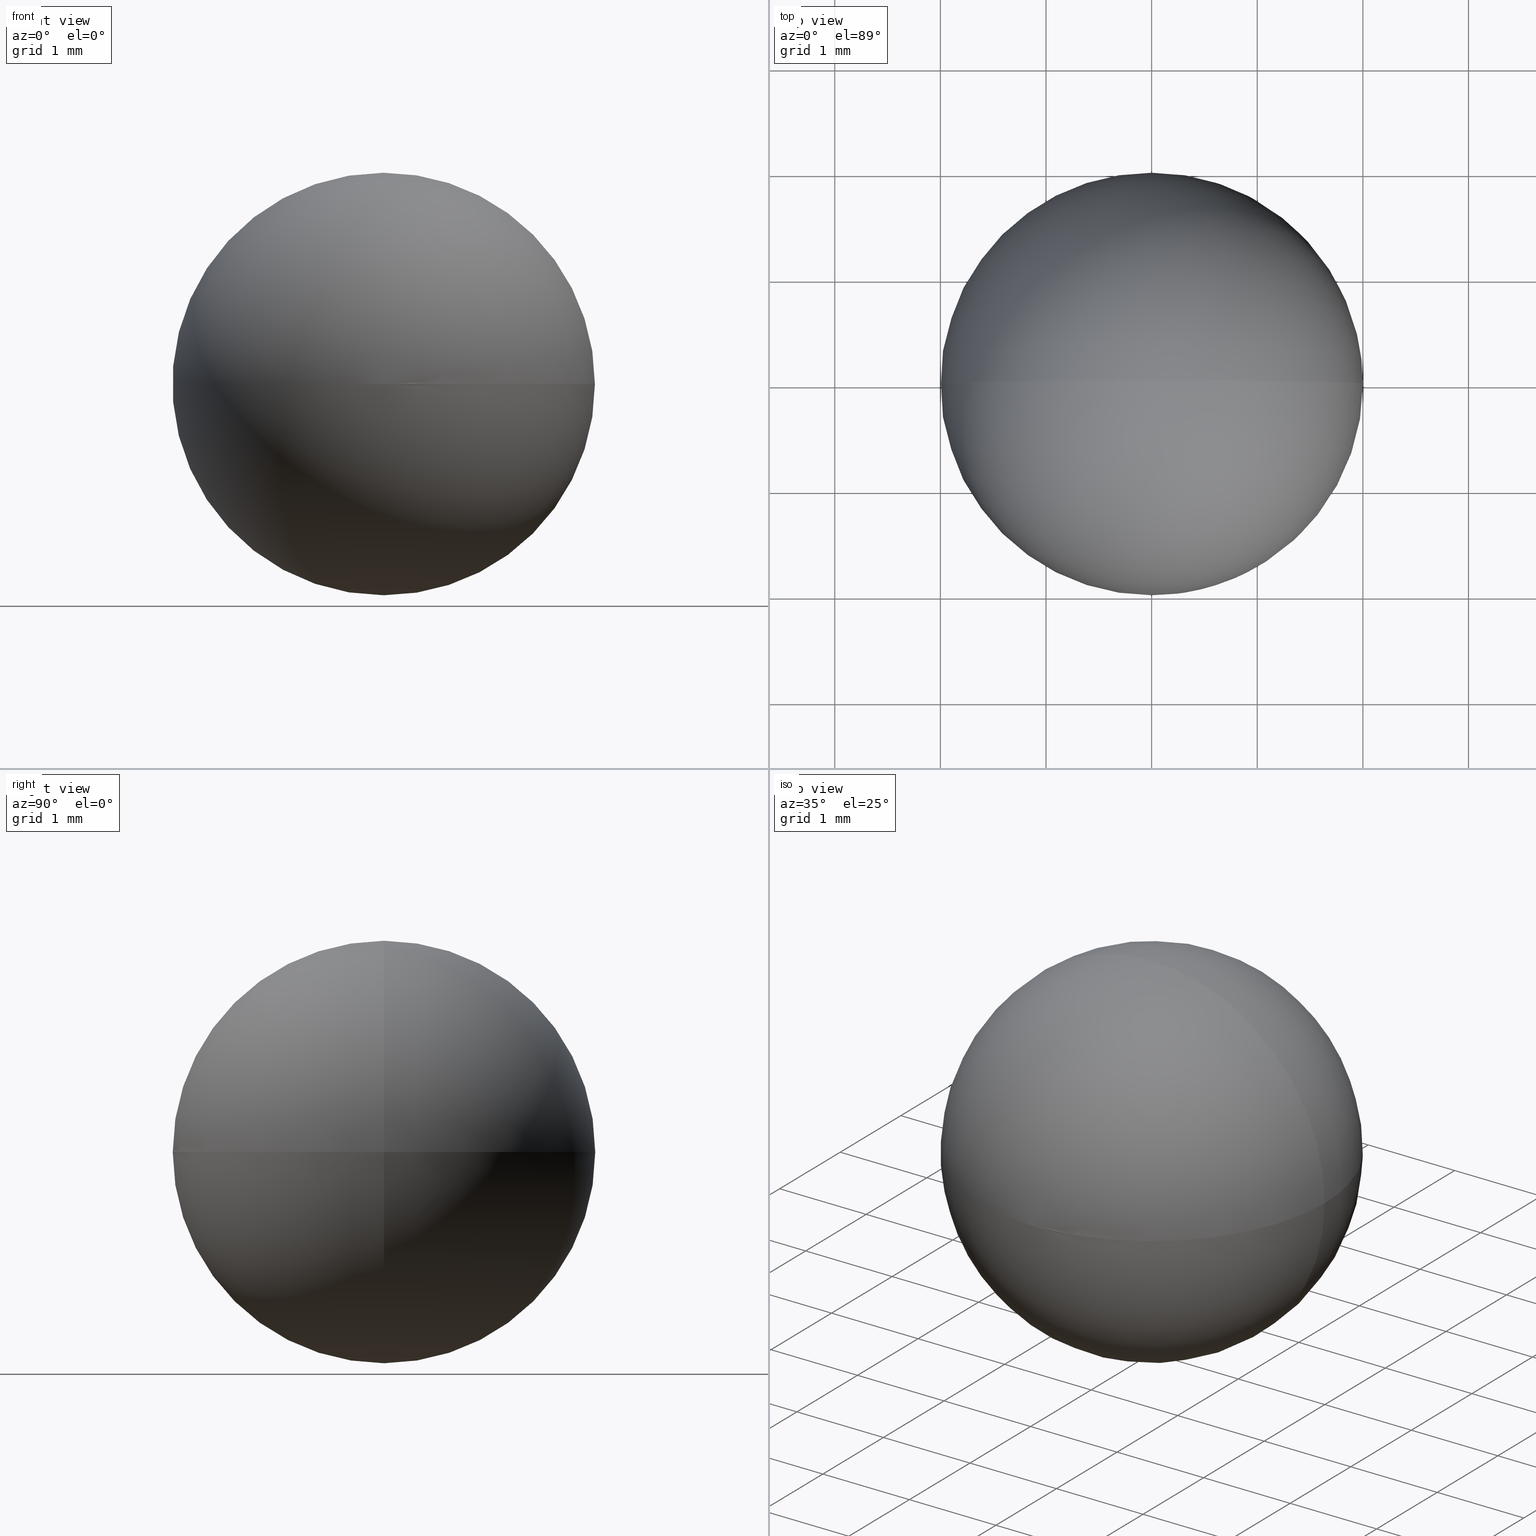
[diagram: canonical four-view strip — front | top / right | iso, engineering-drawing reading convention]
A machine part, canonical four-view strip (front | top / right | iso — engineering-drawing reading convention). The complete STEP part file that produces these views, byte-faithful:
ISO-10303-21;
HEADER;
FILE_DESCRIPTION (( 'STEP AP203' ),
    '1' );
FILE_NAME ('160003.STEP',
    '2019-06-05T05:41:23',
    ( '' ),
    ( '' ),
    'SwSTEP 2.0',
    'SolidWorks 2016',
    '' );
FILE_SCHEMA (( 'CONFIG_CONTROL_DESIGN' ));
ENDSEC;

DATA;
#1 = PRODUCT_DEFINITION_FORMATION_WITH_SPECIFIED_SOURCE ( '�κ�', '', #78, .NOT_KNOWN. ) ;
#2 = COORDINATED_UNIVERSAL_TIME_OFFSET ( 8, 0, .AHEAD. ) ;
#3 = APPROVAL ( #197, 'δָ��' ) ;
#4 = PERSON_AND_ORGANIZATION ( #203, #124 ) ;
#5 = EDGE_CURVE ( 'NONE', #186, #62, #94, .T. ) ;
#6 = PERSON_AND_ORGANIZATION_ROLE ( 'creator' ) ;
#7 = PERSON_AND_ORGANIZATION ( #203, #124 ) ;
#8 = CALENDAR_DATE ( 2019, 5, 6 ) ;
#9 = DIRECTION ( 'NONE',  ( 0.0000000000000000000, 0.0000000000000000000, 1.000000000000000000 ) ) ;
#10 = SECURITY_CLASSIFICATION_LEVEL ( 'unclassified' ) ;
#11 = DESIGN_CONTEXT ( 'detailed design', #105, 'design' ) ;
#12 = SECURITY_CLASSIFICATION ( '', '', #10 ) ;
#13 = CARTESIAN_POINT ( 'NONE',  ( 0.0000000000000000000, 0.0000000000000000000, 0.0000000000000000000 ) ) ;
#14 = CALENDAR_DATE ( 2019, 5, 6 ) ;
#15 = APPROVAL_DATE_TIME ( #108, #3 ) ;
#16 = CC_DESIGN_PERSON_AND_ORGANIZATION_ASSIGNMENT ( #98, #144, ( #201 ) ) ;
#17 = DATE_AND_TIME ( #80, #103 ) ;
#18 = PERSON_AND_ORGANIZATION ( #203, #124 ) ;
#19 = CC_DESIGN_PERSON_AND_ORGANIZATION_ASSIGNMENT ( #18, #141, ( #12 ) ) ;
#20 = LOCAL_TIME ( 13, 41, 23.00000000000000000, #65 ) ;
#21 = DATE_AND_TIME ( #46, #88 ) ;
#22 = ADVANCED_FACE ( 'NONE', ( #26 ), #67, .T. ) ;
#23 = CARTESIAN_POINT ( 'NONE',  ( 0.0000000000000000000, 0.0000000000000000000, 0.0000000000000000000 ) ) ;
#24 = DIRECTION ( 'NONE',  ( 1.000000000000000000, 0.0000000000000000000, 0.0000000000000000000 ) ) ;
#25 = CC_DESIGN_APPROVAL ( #58, ( #50 ) ) ;
#26 = FACE_OUTER_BOUND ( 'NONE', #130, .T. ) ;
#27 = DATE_AND_TIME ( #8, #119 ) ;
#28 = PERSON_AND_ORGANIZATION_ROLE ( 'creator' ) ;
#29 = APPROVAL_STATUS ( 'not_yet_approved' ) ;
#30 = CC_DESIGN_DATE_AND_TIME_ASSIGNMENT ( #111, #32, ( #50 ) ) ;
#31 = COORDINATED_UNIVERSAL_TIME_OFFSET ( 8, 0, .AHEAD. ) ;
#32 = DATE_TIME_ROLE ( 'creation_date' ) ;
#33 = CC_DESIGN_DATE_AND_TIME_ASSIGNMENT ( #138, #158, ( #12 ) ) ;
#34 = CC_DESIGN_APPROVAL ( #91, ( #133 ) ) ;
#35 = APPROVAL_PERSON_ORGANIZATION ( #76, #194, #169 ) ;
#36 = COORDINATED_UNIVERSAL_TIME_OFFSET ( 8, 0, .AHEAD. ) ;
#37 = APPROVAL_DATE_TIME ( #96, #91 ) ;
#38 = CC_DESIGN_PERSON_AND_ORGANIZATION_ASSIGNMENT ( #153, #168, ( #78 ) ) ;
#39 = CARTESIAN_POINT ( 'NONE',  ( 0.0000000000000000000, 0.0000000000000000000, 0.0000000000000000000 ) ) ;
#40 = LOCAL_TIME ( 13, 41, 23.00000000000000000, #176 ) ;
#41 =( LENGTH_UNIT ( ) NAMED_UNIT ( * ) SI_UNIT ( .MILLI., .METRE. ) );
#42 = FACE_OUTER_BOUND ( 'NONE', #149, .T. ) ;
#43 = DIRECTION ( 'NONE',  ( 1.000000000000000000, 0.0000000000000000000, 0.0000000000000000000 ) ) ;
#44 = CC_DESIGN_SECURITY_CLASSIFICATION ( #12, ( #1 ) ) ;
#45 = APPROVAL_DATE_TIME ( #49, #58 ) ;
#46 = CALENDAR_DATE ( 2019, 5, 6 ) ;
#47 = APPROVAL_DATE_TIME ( #136, #194 ) ;
#48 = MANIFOLD_SOLID_BREP ( '��ת2', #114 ) ;
#49 = DATE_AND_TIME ( #123, #60 ) ;
#50 = PRODUCT_DEFINITION ( 'δ֪', '', #68, #95 ) ;
#51 = CC_DESIGN_PERSON_AND_ORGANIZATION_ASSIGNMENT ( #165, #170, ( #68 ) ) ;
#52 = APPROVAL_PERSON_ORGANIZATION ( #196, #3, #90 ) ;
#53 = DIRECTION ( 'NONE',  ( 0.0000000000000000000, 0.0000000000000000000, 1.000000000000000000 ) ) ;
#54 =( NAMED_UNIT ( * ) SI_UNIT ( $, .STERADIAN. ) SOLID_ANGLE_UNIT ( ) );
#55 = MECHANICAL_CONTEXT ( 'NONE', #192, 'mechanical' ) ;
#56 = APPROVAL_STATUS ( 'not_yet_approved' ) ;
#57 = ORIENTED_EDGE ( 'NONE', *, *, #70, .F. ) ;
#58 = APPROVAL ( #113, 'δָ��' ) ;
#59 = MECHANICAL_CONTEXT ( 'NONE', #125, 'mechanical' ) ;
#60 = LOCAL_TIME ( 13, 41, 23.00000000000000000, #188 ) ;
#61 = SECURITY_CLASSIFICATION_LEVEL ( 'unclassified' ) ;
#62 = VERTEX_POINT ( 'NONE', #87 ) ;
#63 = CC_DESIGN_PERSON_AND_ORGANIZATION_ASSIGNMENT ( #97, #183, ( #68 ) ) ;
#64 = AXIS2_PLACEMENT_3D ( 'NONE', #13, #53, #195 ) ;
#65 = COORDINATED_UNIVERSAL_TIME_OFFSET ( 8, 0, .AHEAD. ) ;
#66 = COORDINATED_UNIVERSAL_TIME_OFFSET ( 8, 0, .AHEAD. ) ;
#67 = SPHERICAL_SURFACE ( 'NONE', #110, 2.000000000000000000 ) ;
#68 = PRODUCT_DEFINITION_FORMATION_WITH_SPECIFIED_SOURCE ( '�κ�', '', #201, .NOT_KNOWN. ) ;
#69 = APPROVAL_PERSON_ORGANIZATION ( #116, #120, #180 ) ;
#70 = EDGE_CURVE ( 'NONE', #186, #62, #83, .T. ) ;
#71 = LOCAL_TIME ( 13, 41, 23.00000000000000000, #104 ) ;
#72 = APPROVAL_STATUS ( 'not_yet_approved' ) ;
#73 = PRODUCT_DEFINITION_SHAPE ( 'NONE', 'NONE',  #117 ) ;
#74 = CC_DESIGN_PERSON_AND_ORGANIZATION_ASSIGNMENT ( #127, #159, ( #133 ) ) ;
#75 = APPROVAL_ROLE ( '' ) ;
#76 = PERSON_AND_ORGANIZATION ( #203, #124 ) ;
#77 = APPLICATION_PROTOCOL_DEFINITION ( 'international standard', 'config_control_design', 1994, #172 ) ;
#78 = PRODUCT ( '160003', '160003', '', ( #55 ) ) ;
#79 = APPROVAL_DATE_TIME ( #27, #120 ) ;
#80 = CALENDAR_DATE ( 2019, 5, 6 ) ;
#81 = CC_DESIGN_APPROVAL ( #194, ( #12 ) ) ;
#82 = PERSON_AND_ORGANIZATION ( #203, #124 ) ;
#83 = CIRCLE ( 'NONE', #99, 2.000000000000000000 ) ;
#84 = PRODUCT_DEFINITION_SHAPE ( 'NONE', 'NONE',  #50 ) ;
#85 = CC_DESIGN_DATE_AND_TIME_ASSIGNMENT ( #21, #89, ( #117 ) ) ;
#86 = ADVANCED_FACE ( 'NONE', ( #42 ), #148, .T. ) ;
#87 = CARTESIAN_POINT ( 'NONE',  ( 1.224646799147353200E-016, 0.0000000000000000000, -2.000000000000000000 ) ) ;
#88 = LOCAL_TIME ( 13, 41, 23.00000000000000000, #36 ) ;
#89 = DATE_TIME_ROLE ( 'creation_date' ) ;
#90 = APPROVAL_ROLE ( '' ) ;
#91 = APPROVAL ( #29, 'δָ��' ) ;
#92 = APPROVAL ( #202, 'δָ��' ) ;
#93 = APPROVAL_ROLE ( '' ) ;
#94 = CIRCLE ( 'NONE', #135, 2.000000000000000000 ) ;
#95 = DESIGN_CONTEXT ( 'detailed design', #172, 'design' ) ;
#96 = DATE_AND_TIME ( #162, #40 ) ;
#97 = PERSON_AND_ORGANIZATION ( #203, #124 ) ;
#98 = PERSON_AND_ORGANIZATION ( #203, #124 ) ;
#99 = AXIS2_PLACEMENT_3D ( 'NONE', #122, #155, #9 ) ;
#100 = CALENDAR_DATE ( 2019, 5, 6 ) ;
#101 = ADVANCED_BREP_SHAPE_REPRESENTATION ( '160003', ( #48, #64 ), #189 ) ;
#102 = CC_DESIGN_APPROVAL ( #92, ( #68 ) ) ;
#103 = LOCAL_TIME ( 13, 41, 23.00000000000000000, #2 ) ;
#104 = COORDINATED_UNIVERSAL_TIME_OFFSET ( 8, 0, .AHEAD. ) ;
#105 = APPLICATION_CONTEXT ( 'configuration controlled 3d designs of mechanical parts and assemblies' ) ;
#106 = DIRECTION ( 'NONE',  ( 0.0000000000000000000, -1.000000000000000000, -0.0000000000000000000 ) ) ;
#107 = PERSON_AND_ORGANIZATION_ROLE ( 'design_supplier' ) ;
#108 = DATE_AND_TIME ( #121, #71 ) ;
#109 = CARTESIAN_POINT ( 'NONE',  ( 1.224646799147353200E-016, 0.0000000000000000000, 2.000000000000000000 ) ) ;
#110 = AXIS2_PLACEMENT_3D ( 'NONE', #23, #154, #179 ) ;
#111 = DATE_AND_TIME ( #118, #147 ) ;
#112 = PERSON_AND_ORGANIZATION ( #203, #124 ) ;
#113 = APPROVAL_STATUS ( 'not_yet_approved' ) ;
#114 = CLOSED_SHELL ( 'NONE', ( #22, #86 ) ) ;
#115 = ORIENTED_EDGE ( 'NONE', *, *, #5, .F. ) ;
#116 = PERSON_AND_ORGANIZATION ( #203, #124 ) ;
#117 = PRODUCT_DEFINITION ( 'δ֪', '', #1, #11 ) ;
#118 = CALENDAR_DATE ( 2019, 5, 6 ) ;
#119 = LOCAL_TIME ( 13, 41, 23.00000000000000000, #150 ) ;
#120 = APPROVAL ( #72, 'δָ��' ) ;
#121 = CALENDAR_DATE ( 2019, 5, 6 ) ;
#122 = CARTESIAN_POINT ( 'NONE',  ( 0.0000000000000000000, 0.0000000000000000000, 0.0000000000000000000 ) ) ;
#123 = CALENDAR_DATE ( 2019, 5, 6 ) ;
#124 = ORGANIZATION ( 'δָ��', 'δָ��', '' ) ;
#125 = APPLICATION_CONTEXT ( 'configuration controlled 3d designs of mechanical parts and assemblies' ) ;
#126 = CC_DESIGN_APPROVAL ( #120, ( #117 ) ) ;
#127 = PERSON_AND_ORGANIZATION ( #203, #124 ) ;
#128 = PERSON_AND_ORGANIZATION_ROLE ( 'creator' ) ;
#129 = APPROVAL_PERSON_ORGANIZATION ( #7, #91, #75 ) ;
#130 = EDGE_LOOP ( 'NONE', ( #57, #167 ) ) ;
#131 = APPROVAL_PERSON_ORGANIZATION ( #82, #92, #182 ) ;
#132 = CC_DESIGN_PERSON_AND_ORGANIZATION_ASSIGNMENT ( #174, #28, ( #1 ) ) ;
#133 = SECURITY_CLASSIFICATION ( '', '', #61 ) ;
#134 = PERSON_AND_ORGANIZATION ( #203, #124 ) ;
#135 = AXIS2_PLACEMENT_3D ( 'NONE', #39, #140, #178 ) ;
#136 = DATE_AND_TIME ( #193, #185 ) ;
#137 = CARTESIAN_POINT ( 'NONE',  ( 0.0000000000000000000, 0.0000000000000000000, 0.0000000000000000000 ) ) ;
#138 = DATE_AND_TIME ( #100, #146 ) ;
#139 = APPLICATION_PROTOCOL_DEFINITION ( 'international standard', 'config_control_design', 1994, #105 ) ;
#140 = DIRECTION ( 'NONE',  ( 1.224646799147353200E-016, -1.000000000000000000, 0.0000000000000000000 ) ) ;
#141 = PERSON_AND_ORGANIZATION_ROLE ( 'classification_officer' ) ;
#142 = CC_DESIGN_DATE_AND_TIME_ASSIGNMENT ( #17, #160, ( #133 ) ) ;
#143 = PRODUCT_RELATED_PRODUCT_CATEGORY ( 'detail', '', ( #78 ) ) ;
#144 = PERSON_AND_ORGANIZATION_ROLE ( 'design_owner' ) ;
#145 = DATE_AND_TIME ( #14, #20 ) ;
#146 = LOCAL_TIME ( 13, 41, 23.00000000000000000, #31 ) ;
#147 = LOCAL_TIME ( 13, 41, 23.00000000000000000, #152 ) ;
#148 = SPHERICAL_SURFACE ( 'NONE', #187, 2.000000000000000000 ) ;
#149 = EDGE_LOOP ( 'NONE', ( #115, #175 ) ) ;
#150 = COORDINATED_UNIVERSAL_TIME_OFFSET ( 8, 0, .AHEAD. ) ;
#151 = CC_DESIGN_PERSON_AND_ORGANIZATION_ASSIGNMENT ( #191, #128, ( #50 ) ) ;
#152 = COORDINATED_UNIVERSAL_TIME_OFFSET ( 8, 0, .AHEAD. ) ;
#153 = PERSON_AND_ORGANIZATION ( #203, #124 ) ;
#154 = DIRECTION ( 'NONE',  ( 0.0000000000000000000, -1.000000000000000000, -0.0000000000000000000 ) ) ;
#155 = DIRECTION ( 'NONE',  ( 0.0000000000000000000, 1.000000000000000000, -0.0000000000000000000 ) ) ;
#156 = APPLICATION_PROTOCOL_DEFINITION ( 'international standard', 'config_control_design', 1994, #192 ) ;
#157 = SHAPE_DEFINITION_REPRESENTATION ( #84, #101 ) ;
#158 = DATE_TIME_ROLE ( 'classification_date' ) ;
#159 = PERSON_AND_ORGANIZATION_ROLE ( 'classification_officer' ) ;
#160 = DATE_TIME_ROLE ( 'classification_date' ) ;
#161 = CC_DESIGN_PERSON_AND_ORGANIZATION_ASSIGNMENT ( #134, #6, ( #117 ) ) ;
#162 = CALENDAR_DATE ( 2019, 5, 6 ) ;
#163 = UNCERTAINTY_MEASURE_WITH_UNIT (LENGTH_MEASURE( 1.000000000000000100E-005 ), #41, 'distance_accuracy_value', 'NONE');
#164 = CC_DESIGN_PERSON_AND_ORGANIZATION_ASSIGNMENT ( #112, #107, ( #1 ) ) ;
#165 = PERSON_AND_ORGANIZATION ( #203, #124 ) ;
#166 = DIRECTION ( 'NONE',  ( 0.0000000000000000000, 0.0000000000000000000, 1.000000000000000000 ) ) ;
#167 = ORIENTED_EDGE ( 'NONE', *, *, #5, .T. ) ;
#168 = PERSON_AND_ORGANIZATION_ROLE ( 'design_owner' ) ;
#169 = APPROVAL_ROLE ( '' ) ;
#170 = PERSON_AND_ORGANIZATION_ROLE ( 'design_supplier' ) ;
#171 = APPROVAL_PERSON_ORGANIZATION ( #4, #58, #93 ) ;
#172 = APPLICATION_CONTEXT ( 'configuration controlled 3d designs of mechanical parts and assemblies' ) ;
#173 = CC_DESIGN_APPROVAL ( #3, ( #1 ) ) ;
#174 = PERSON_AND_ORGANIZATION ( #203, #124 ) ;
#175 = ORIENTED_EDGE ( 'NONE', *, *, #70, .T. ) ;
#176 = COORDINATED_UNIVERSAL_TIME_OFFSET ( 8, 0, .AHEAD. ) ;
#177 =( NAMED_UNIT ( * ) PLANE_ANGLE_UNIT ( ) SI_UNIT ( $, .RADIAN. ) );
#178 = DIRECTION ( 'NONE',  ( 1.000000000000000000, 1.224646799147353200E-016, 0.0000000000000000000 ) ) ;
#179 = DIRECTION ( 'NONE',  ( 1.000000000000000000, 0.0000000000000000000, 0.0000000000000000000 ) ) ;
#180 = APPROVAL_ROLE ( '' ) ;
#181 = APPLICATION_PROTOCOL_DEFINITION ( 'international standard', 'config_control_design', 1994, #125 ) ;
#182 = APPROVAL_ROLE ( '' ) ;
#183 = PERSON_AND_ORGANIZATION_ROLE ( 'creator' ) ;
#184 = APPROVAL_DATE_TIME ( #145, #92 ) ;
#185 = LOCAL_TIME ( 13, 41, 23.00000000000000000, #66 ) ;
#186 = VERTEX_POINT ( 'NONE', #109 ) ;
#187 = AXIS2_PLACEMENT_3D ( 'NONE', #198, #106, #24 ) ;
#188 = COORDINATED_UNIVERSAL_TIME_OFFSET ( 8, 0, .AHEAD. ) ;
#189 =( GEOMETRIC_REPRESENTATION_CONTEXT ( 3 ) GLOBAL_UNCERTAINTY_ASSIGNED_CONTEXT ( ( #163 ) ) GLOBAL_UNIT_ASSIGNED_CONTEXT ( ( #41, #177, #54 ) ) REPRESENTATION_CONTEXT ( 'NONE', 'WORKASPACE' ) );
#190 = PRODUCT_RELATED_PRODUCT_CATEGORY ( 'detail', '', ( #201 ) ) ;
#191 = PERSON_AND_ORGANIZATION ( #203, #124 ) ;
#192 = APPLICATION_CONTEXT ( 'configuration controlled 3d designs of mechanical parts and assemblies' ) ;
#193 = CALENDAR_DATE ( 2019, 5, 6 ) ;
#194 = APPROVAL ( #56, 'δָ��' ) ;
#195 = DIRECTION ( 'NONE',  ( 1.000000000000000000, 0.0000000000000000000, 0.0000000000000000000 ) ) ;
#196 = PERSON_AND_ORGANIZATION ( #203, #124 ) ;
#197 = APPROVAL_STATUS ( 'not_yet_approved' ) ;
#198 = CARTESIAN_POINT ( 'NONE',  ( 0.0000000000000000000, 0.0000000000000000000, 0.0000000000000000000 ) ) ;
#199 = AXIS2_PLACEMENT_3D ( 'NONE', #137, #166, #43 ) ;
#200 = CC_DESIGN_SECURITY_CLASSIFICATION ( #133, ( #68 ) ) ;
#201 = PRODUCT ( '160003', '160003', '', ( #59 ) ) ;
#202 = APPROVAL_STATUS ( 'not_yet_approved' ) ;
#203 = PERSON ( 'δָ��', 'δָ��', 'δָ��', ('δָ��'), ('δָ��'), ('δָ��') ) ;
ENDSEC;
END-ISO-10303-21;
